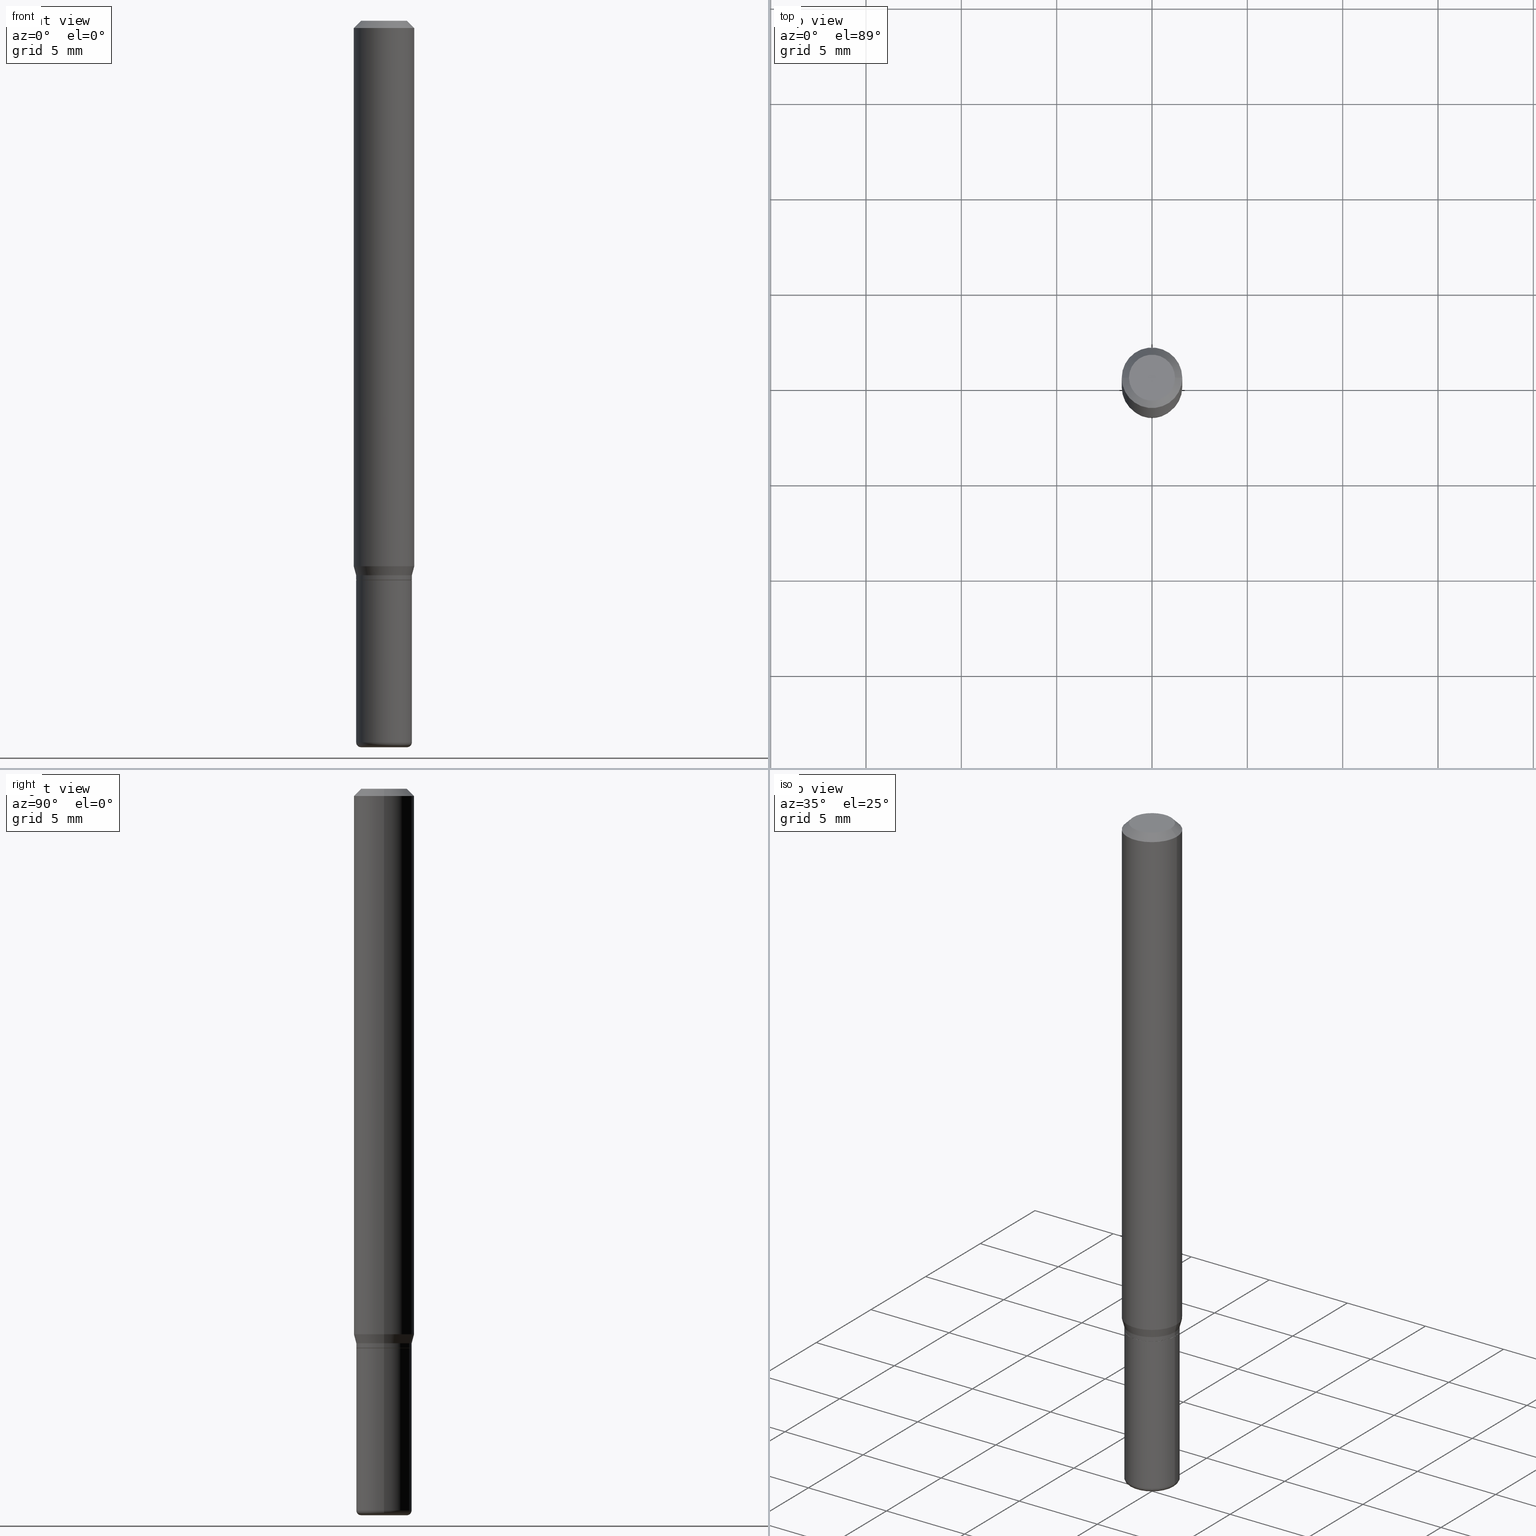
[diagram: canonical four-view strip — front | top / right | iso, engineering-drawing reading convention]
A machine part, canonical four-view strip (front | top / right | iso — engineering-drawing reading convention). The complete STEP part file that produces these views, byte-faithful:
ISO-10303-21;
HEADER;
FILE_DESCRIPTION (( 'STEP AP203' ),
    '1' );
FILE_NAME ('08624.STEP',
    '2024-02-29T20:02:40',
    ( '' ),
    ( '' ),
    'SwSTEP 2.0',
    'SolidWorks 2023',
    '' );
FILE_SCHEMA (( 'CONFIG_CONTROL_DESIGN' ));
ENDSEC;

DATA;
#1 = DIRECTION ( 'NONE',  ( -6.982962677686266711E-15, -1.000000000000000000, 3.491481338843145583E-15 ) ) ;
#2 = CARTESIAN_POINT ( 'NONE',  ( 2.754428713916942619E-29, -3.932594204224195830E-15, -1.126339745962155581 ) ) ;
#3 = VERTEX_POINT ( 'NONE', #470 ) ;
#4 = DIRECTION ( 'NONE',  ( -2.445468806185136597E-29, 3.491481338843145583E-15, 1.000000000000000000 ) ) ;
#5 = CARTESIAN_POINT ( 'NONE',  ( 2.754428713916942619E-29, -3.932594204224195830E-15, -1.126339745962155581 ) ) ;
#6 = ORIENTED_EDGE ( 'NONE', *, *, #338, .T. ) ;
#7 = DIRECTION ( 'NONE',  ( -2.445468806185136877E-29, 3.491481338843145188E-15, 1.000000000000000000 ) ) ;
#8 = DIRECTION ( 'NONE',  ( 1.000000000000000000, -6.982962677686273810E-15, 0.000000000000000000 ) ) ;
#9 = APPROVAL ( #220, 'UNSPECIFIED' ) ;
#10 = AXIS2_PLACEMENT_3D ( 'NONE', #233, #103, #422 ) ;
#11 = AXIS2_PLACEMENT_3D ( 'NONE', #14, #162, #411 ) ;
#12 = DIRECTION ( 'NONE',  ( -2.445468806185136597E-29, 3.491481338843145583E-15, 1.000000000000000000 ) ) ;
#13 = ADVANCED_FACE ( 'NONE', ( #74 ), #211, .T. ) ;
#14 = CARTESIAN_POINT ( 'NONE',  ( 3.668203209277632395E-31, -5.237222008264614861E-17, -0.01499999999999970281 ) ) ;
#15 = APPROVAL_DATE_TIME ( #95, #501 ) ;
#16 = VECTOR ( 'NONE', #123, 39.37007874015748143 ) ;
#17 = MANIFOLD_SOLID_BREP ( 'Body-Move/Copy2[2]', #236 ) ;
#18 = CALENDAR_DATE ( 2024, 29, 2 ) ;
#19 = ORIENTED_EDGE ( 'NONE', *, *, #238, .F. ) ;
#20 = ORIENTED_EDGE ( 'NONE', *, *, #121, .T. ) ;
#21 = AXIS2_PLACEMENT_3D ( 'NONE', #362, #514, #115 ) ;
#22 = DIRECTION ( 'NONE',  ( -2.445468806185136597E-29, 3.491481338843145583E-15, 1.000000000000000000 ) ) ;
#23 = EDGE_CURVE ( 'NONE', #112, #77, #219, .T. ) ;
#24 = AXIS2_PLACEMENT_3D ( 'NONE', #72, #156, #477 ) ;
#25 = PERSON_AND_ORGANIZATION ( #185, #111 ) ;
#26 = EDGE_CURVE ( 'NONE', #3, #186, #452, .T. ) ;
#27 = ORIENTED_EDGE ( 'NONE', *, *, #26, .T. ) ;
#28 = VERTEX_POINT ( 'NONE', #395 ) ;
#29 = VECTOR ( 'NONE', #129, 39.37007874015748143 ) ;
#30 = AXIS2_PLACEMENT_3D ( 'NONE', #296, #12, #374 ) ;
#31 = CARTESIAN_POINT ( 'NONE',  ( 0.06250000000000000000, -4.811533449433669144E-16, -0.01499999999999970281 ) ) ;
#32 = ORIENTED_EDGE ( 'NONE', *, *, #134, .T. ) ;
#33 = DIRECTION ( 'NONE',  ( 1.000000000000000000, -6.982962677686263555E-15, 0.000000000000000000 ) ) ;
#34 = CIRCLE ( 'NONE', #42, 0.04750000000000000749 ) ;
#35 = APPROVAL_PERSON_ORGANIZATION ( #461, #350, #380 ) ;
#36 = DIRECTION ( 'NONE',  ( -2.445468806185136597E-29, 3.491481338843145583E-15, 1.000000000000000000 ) ) ;
#37 = PRODUCT ( '08624', '08624', '', ( #311 ) ) ;
#38 = ORIENTED_EDGE ( 'NONE', *, *, #361, .T. ) ;
#39 = PLANE ( 'NONE',  #279 ) ;
#40 = DIRECTION ( 'NONE',  ( -2.445468806185136597E-29, 3.491481338843145583E-15, 1.000000000000000000 ) ) ;
#41 =( CONVERSION_BASED_UNIT ( 'INCH', #248 ) LENGTH_UNIT ( ) NAMED_UNIT ( #442 ) );
#42 = AXIS2_PLACEMENT_3D ( 'NONE', #388, #161, #247 ) ;
#43 = LOCAL_TIME ( 15, 2, 40.00000000000000000, #505 ) ;
#44 = EDGE_CURVE ( 'NONE', #344, #70, #289, .T. ) ;
#45 = CARTESIAN_POINT ( 'NONE',  ( 0.000000000000000000, 0.000000000000000000, 0.000000000000000000 ) ) ;
#46 = ADVANCED_FACE ( 'NONE', ( #434 ), #107, .T. ) ;
#47 = ORIENTED_EDGE ( 'NONE', *, *, #238, .T. ) ;
#48 = EDGE_LOOP ( 'NONE', ( #342, #204, #419, #51 ) ) ;
#49 = ADVANCED_FACE ( 'NONE', ( #194 ), #212, .T. ) ;
#50 = SECURITY_CLASSIFICATION_LEVEL ( 'unclassified' ) ;
#51 = ORIENTED_EDGE ( 'NONE', *, *, #253, .T. ) ;
#52 = AXIS2_PLACEMENT_3D ( 'NONE', #484, #132, #291 ) ;
#53 = VECTOR ( 'NONE', #450, 39.37007874015748143 ) ;
#54 = PERSON_AND_ORGANIZATION ( #185, #111 ) ;
#55 = ORIENTED_EDGE ( 'NONE', *, *, #205, .T. ) ;
#56 = ORIENTED_EDGE ( 'NONE', *, *, #105, .F. ) ;
#57 = PERSON_AND_ORGANIZATION_ROLE ( 'creator' ) ;
#58 = EDGE_CURVE ( 'NONE', #124, #359, #276, .T. ) ;
#59 = DIRECTION ( 'NONE',  ( -2.445468806185136597E-29, 3.491481338843145583E-15, 1.000000000000000000 ) ) ;
#60 = CARTESIAN_POINT ( 'NONE',  ( 2.823293736740741066E-29, -4.030915205694411879E-15, -1.154500000000000304 ) ) ;
#61 = DIRECTION ( 'NONE',  ( -2.438088387897960049E-29, 3.491481338843145188E-15, 1.000000000000000000 ) ) ;
#62 = DIRECTION ( 'NONE',  ( 1.000000000000000000, -6.982962677686266711E-15, 4.876176775795935793E-29 ) ) ;
#63 = DATE_AND_TIME ( #261, #43 ) ;
#64 = DIRECTION ( 'NONE',  ( 1.000000000000000000, -6.982962677686259611E-15, 0.000000000000000000 ) ) ;
#65 = AXIS2_PLACEMENT_3D ( 'NONE', #320, #366, #83 ) ;
#66 = UNCERTAINTY_MEASURE_WITH_UNIT (LENGTH_MEASURE( 1.000000000000000082E-05 ), #41, 'distance_accuracy_value', 'NONE');
#67 = CYLINDRICAL_SURFACE ( 'NONE', #137, 0.06250000000000000000 ) ;
#68 = CC_DESIGN_APPROVAL ( #501, ( #80 ) ) ;
#69 = DIRECTION ( 'NONE',  ( -2.445468806185136597E-29, 3.491481338843145583E-15, 1.000000000000000000 ) ) ;
#70 = VERTEX_POINT ( 'NONE', #436 ) ;
#71 = CC_DESIGN_PERSON_AND_ORGANIZATION_ASSIGNMENT ( #463, #384, ( #278 ) ) ;
#72 = CARTESIAN_POINT ( 'NONE',  ( 3.643748521215853910E-29, -5.202307194876288105E-15, -1.490000000000000213 ) ) ;
#73 = DIRECTION ( 'NONE',  ( 1.000000000000000000, -6.982962677686266711E-15, 0.000000000000000000 ) ) ;
#74 = FACE_OUTER_BOUND ( 'NONE', #237, .T. ) ;
#75 = ADVANCED_FACE ( 'NONE', ( #155 ), #369, .F. ) ;
#76 = LINE ( 'NONE', #282, #99 ) ;
#77 = VERTEX_POINT ( 'NONE', #198 ) ;
#78 = AXIS2_PLACEMENT_3D ( 'NONE', #60, #426, #64 ) ;
#79 = LOCAL_TIME ( 15, 2, 40.00000000000000000, #182 ) ;
#80 = PRODUCT_DEFINITION ( 'UNKNOWN', '', #272, #109 ) ;
#81 = CARTESIAN_POINT ( 'NONE',  ( 2.823293736740741066E-29, -4.030915205694411879E-15, -1.154500000000000304 ) ) ;
#82 = ORIENTED_EDGE ( 'NONE', *, *, #410, .F. ) ;
#83 = DIRECTION ( 'NONE',  ( -1.000000000000000000, 6.982962677686266711E-15, 0.000000000000000000 ) ) ;
#84 = FACE_OUTER_BOUND ( 'NONE', #510, .T. ) ;
#85 = CARTESIAN_POINT ( 'NONE',  ( 3.668203209277632395E-31, -5.237222008264614861E-17, -0.01499999999999970281 ) ) ;
#86 = EDGE_CURVE ( 'NONE', #186, #3, #321, .T. ) ;
#87 = ORIENTED_EDGE ( 'NONE', *, *, #44, .F. ) ;
#88 = DIRECTION ( 'NONE',  ( -2.445468806185136877E-29, 3.491481338843145188E-15, 1.000000000000000000 ) ) ;
#89 = DIRECTION ( 'NONE',  ( 2.438088387897960049E-29, -3.491481338843145188E-15, -1.000000000000000000 ) ) ;
#90 = CARTESIAN_POINT ( 'NONE',  ( -0.06250000000000000000, 4.440892098500626162E-16, -3.074334431409316114E-30 ) ) ;
#91 = AXIS2_PLACEMENT_3D ( 'NONE', #357, #517, #235 ) ;
#92 = DIRECTION ( 'NONE',  ( -2.445468806185136597E-29, 3.491481338843145583E-15, 1.000000000000000000 ) ) ;
#93 = CIRCLE ( 'NONE', #159, 0.04750000000000000749 ) ;
#94 = CARTESIAN_POINT ( 'NONE',  ( -0.05749999999999994699, -4.208921997558003169E-15, -1.490000000000000213 ) ) ;
#95 = DATE_AND_TIME ( #173, #354 ) ;
#96 = VERTEX_POINT ( 'NONE', #288 ) ;
#97 = APPLICATION_PROTOCOL_DEFINITION ( 'international standard', 'config_control_design', 1994, #256 ) ;
#98 = ORIENTED_EDGE ( 'NONE', *, *, #487, .F. ) ;
#99 = VECTOR ( 'NONE', #208, 39.37007874015748143 ) ;
#100 = AXIS2_PLACEMENT_3D ( 'NONE', #375, #1, #254 ) ;
#101 = DIRECTION ( 'NONE',  ( -1.000000000000000000, 6.982962677686265922E-15, -4.876176775795935793E-29 ) ) ;
#102 = COORDINATED_UNIVERSAL_TIME_OFFSET ( 5, 0, .BEHIND. ) ;
#103 = DIRECTION ( 'NONE',  ( -2.445468806185136597E-29, 3.491481338843145583E-15, 1.000000000000000000 ) ) ;
#104 = LINE ( 'NONE', #507, #427 ) ;
#105 = EDGE_CURVE ( 'NONE', #359, #127, #167, .T. ) ;
#106 = DIRECTION ( 'NONE',  ( 0.000000000000000000, 0.000000000000000000, 1.000000000000000000 ) ) ;
#107 = CONICAL_SURFACE ( 'NONE', #502, 0.05749999999999994699, 0.2617993877991489637 ) ;
#108 = DIRECTION ( 'NONE',  ( 1.000000000000000000, -6.982962677686263555E-15, 0.000000000000000000 ) ) ;
#109 = DESIGN_CONTEXT ( 'detailed design', #286, 'design' ) ;
#110 = DIRECTION ( 'NONE',  ( 1.000000000000000000, -6.982962677686272233E-15, 0.000000000000000000 ) ) ;
#111 = ORGANIZATION ( 'UNSPECIFIED', 'UNSPECIFIED', '' ) ;
#112 = VERTEX_POINT ( 'NONE', #119 ) ;
#113 = EDGE_CURVE ( 'NONE', #77, #186, #478, .T. ) ;
#114 = EDGE_LOOP ( 'NONE', ( #20, #183 ) ) ;
#115 = DIRECTION ( 'NONE',  ( 1.000000000000000000, -6.982962677686272233E-15, 0.000000000000000000 ) ) ;
#116 = FACE_OUTER_BOUND ( 'NONE', #325, .T. ) ;
#117 = ADVANCED_FACE ( 'NONE', ( #482 ), #260, .T. ) ;
#118 = ORIENTED_EDGE ( 'NONE', *, *, #498, .T. ) ;
#119 = CARTESIAN_POINT ( 'NONE',  ( 0.05699999999999997430, -4.430689818991950396E-15, -1.155000000000000027 ) ) ;
#120 = ORIENTED_EDGE ( 'NONE', *, *, #58, .T. ) ;
#121 = EDGE_CURVE ( 'NONE', #197, #250, #269, .T. ) ;
#122 = CARTESIAN_POINT ( 'NONE',  ( 0.05749999999999994699, -4.399266486942362543E-15, -1.145000000000000240 ) ) ;
#123 = DIRECTION ( 'NONE',  ( -0.7071067811865479058, 2.468850131082261005E-15, -0.7071067811865471286 ) ) ;
#124 = VERTEX_POINT ( 'NONE', #511 ) ;
#125 = DIRECTION ( 'NONE',  ( -2.445468806185136597E-29, 3.491481338843145583E-15, 1.000000000000000000 ) ) ;
#126 = LINE ( 'NONE', #157, #29 ) ;
#127 = VERTEX_POINT ( 'NONE', #440 ) ;
#128 = DIRECTION ( 'NONE',  ( 1.000000000000000000, -6.982962677686262766E-15, 4.883557194083111780E-29 ) ) ;
#129 = DIRECTION ( 'NONE',  ( -2.445468806185136877E-29, 3.491481338843145188E-15, 1.000000000000000000 ) ) ;
#130 = ORIENTED_EDGE ( 'NONE', *, *, #302, .T. ) ;
#131 = VECTOR ( 'NONE', #280, 39.37007874015748143 ) ;
#132 = DIRECTION ( 'NONE',  ( -2.445468806185136597E-29, 3.491481338843145583E-15, 1.000000000000000000 ) ) ;
#133 = DIRECTION ( 'NONE',  ( 1.000000000000000000, -6.982962677686266711E-15, 4.852736867747365086E-29 ) ) ;
#134 = EDGE_CURVE ( 'NONE', #127, #438, #126, .T. ) ;
#135 = FACE_OUTER_BOUND ( 'NONE', #148, .T. ) ;
#136 = PRODUCT_RELATED_PRODUCT_CATEGORY ( 'detail', '', ( #37 ) ) ;
#137 = AXIS2_PLACEMENT_3D ( 'NONE', #266, #424, #62 ) ;
#138 = EDGE_CURVE ( 'NONE', #290, #412, #283, .T. ) ;
#139 =( LENGTH_UNIT ( ) NAMED_UNIT ( * ) SI_UNIT ( $, .METRE. ) );
#140 = VECTOR ( 'NONE', #147, 39.37007874015748143 ) ;
#141 = ORIENTED_EDGE ( 'NONE', *, *, #178, .F. ) ;
#142 = EDGE_LOOP ( 'NONE', ( #258, #306, #479, #87 ) ) ;
#143 = EDGE_CURVE ( 'NONE', #127, #359, #383, .T. ) ;
#144 = CARTESIAN_POINT ( 'NONE',  ( 0.000000000000000000, 0.000000000000000000, 0.000000000000000000 ) ) ;
#145 = DIRECTION ( 'NONE',  ( -2.445468806185136597E-29, 3.491481338843145583E-15, 1.000000000000000000 ) ) ;
#146 = EDGE_CURVE ( 'NONE', #150, #344, #509, .T. ) ;
#147 = DIRECTION ( 'NONE',  ( -2.445468806185136877E-29, 3.491481338843145188E-15, 1.000000000000000000 ) ) ;
#148 = EDGE_LOOP ( 'NONE', ( #508, #188, #356, #393 ) ) ;
#149 = FACE_OUTER_BOUND ( 'NONE', #491, .T. ) ;
#150 = VERTEX_POINT ( 'NONE', #166 ) ;
#151 = PRODUCT_DEFINITION_SHAPE ( 'NONE', 'NONE',  #80 ) ;
#152 = ORIENTED_EDGE ( 'NONE', *, *, #232, .T. ) ;
#153 = ORIENTED_EDGE ( 'NONE', *, *, #26, .F. ) ;
#154 = CARTESIAN_POINT ( 'NONE',  ( 0.000000000000000000, 0.000000000000000000, 0.000000000000000000 ) ) ;
#155 = FACE_OUTER_BOUND ( 'NONE', #114, .T. ) ;
#156 = DIRECTION ( 'NONE',  ( -2.445468806185136597E-29, 3.491481338843145583E-15, 1.000000000000000000 ) ) ;
#157 = CARTESIAN_POINT ( 'NONE',  ( 0.06250000000000000000, -4.364351673553916694E-16, 3.047610484872459871E-30 ) ) ;
#158 = AXIS2_PLACEMENT_3D ( 'NONE', #273, #145, #110 ) ;
#159 = AXIS2_PLACEMENT_3D ( 'NONE', #165, #245, #133 ) ;
#160 = CARTESIAN_POINT ( 'NONE',  ( -0.05699999999999997430, -3.627651586980576706E-15, -1.155000000000000027 ) ) ;
#161 = DIRECTION ( 'NONE',  ( -2.445468806185136597E-29, 3.491481338843145583E-15, 1.000000000000000000 ) ) ;
#162 = DIRECTION ( 'NONE',  ( 2.445468806185136597E-29, -3.491481338843145583E-15, -1.000000000000000000 ) ) ;
#163 = DIRECTION ( 'NONE',  ( 1.000000000000000000, -6.982962677686272233E-15, 0.000000000000000000 ) ) ;
#164 = EDGE_LOOP ( 'NONE', ( #263, #38 ) ) ;
#165 = CARTESIAN_POINT ( 'NONE',  ( -6.680649051745406845E-45, 9.538196290434862081E-31, 2.731847993664263218E-16 ) ) ;
#166 = CARTESIAN_POINT ( 'NONE',  ( -0.04750000000000000749, -4.846729665296451395E-15, -1.500000000000000222 ) ) ;
#167 = CIRCLE ( 'NONE', #390, 0.06250000000000000000 ) ;
#168 = LINE ( 'NONE', #328, #486 ) ;
#169 = EDGE_CURVE ( 'NONE', #96, #438, #472, .T. ) ;
#170 = CARTESIAN_POINT ( 'NONE',  ( -0.06250000000000000000, -3.488504994374132819E-15, -1.126339745962155581 ) ) ;
#171 = MANIFOLD_SOLID_BREP ( 'Body-Move/Copy2[1]', #515 ) ;
#172 = AXIS2_PLACEMENT_3D ( 'NONE', #506, #69, #341 ) ;
#173 = CALENDAR_DATE ( 2024, 29, 2 ) ;
#174 = LOCAL_TIME ( 15, 2, 40.00000000000000000, #377 ) ;
#175 = DATE_AND_TIME ( #18, #174 ) ;
#176 = ORIENTED_EDGE ( 'NONE', *, *, #323, .T. ) ;
#177 = PERSON_AND_ORGANIZATION_ROLE ( 'design_owner' ) ;
#178 = EDGE_CURVE ( 'NONE', #250, #197, #435, .T. ) ;
#179 = APPROVAL_ROLE ( '' ) ;
#180 = AXIS2_PLACEMENT_3D ( 'NONE', #408, #492, #400 ) ;
#181 = DIRECTION ( 'NONE',  ( 1.000000000000000000, -6.982962677686268288E-15, 0.000000000000000000 ) ) ;
#182 = COORDINATED_UNIVERSAL_TIME_OFFSET ( 5, 0, .BEHIND. ) ;
#183 = ORIENTED_EDGE ( 'NONE', *, *, #178, .T. ) ;
#184 = EDGE_CURVE ( 'NONE', #28, #150, #468, .T. ) ;
#185 = PERSON ( 'UNSPECIFIED', 'UNSPECIFIED', 'UNSPECIFIED', ('UNSPECIFIED'), ('UNSPECIFIED'), ('UNSPECIFIED') ) ;
#186 = VERTEX_POINT ( 'NONE', #229 ) ;
#187 = CARTESIAN_POINT ( 'NONE',  ( 3.316907271900976589E-16, 0.04750000000000000749, -2.925296391183627249E-17 ) ) ;
#188 = ORIENTED_EDGE ( 'NONE', *, *, #146, .T. ) ;
#189 = CIRCLE ( 'NONE', #158, 0.05749999999999994699 ) ;
#190 = PLANE ( 'NONE',  #459 ) ;
#191 = CC_DESIGN_APPROVAL ( #350, ( #272 ) ) ;
#192 = DIRECTION ( 'NONE',  ( 0.7071067811865479058, -7.319954787623257623E-15, -0.7071067811865471286 ) ) ;
#193 = EDGE_LOOP ( 'NONE', ( #55, #120, #406, #367 ) ) ;
#194 = FACE_OUTER_BOUND ( 'NONE', #378, .T. ) ;
#195 = DIRECTION ( 'NONE',  ( 1.000000000000000000, -6.982962677686266711E-15, 0.000000000000000000 ) ) ;
#196 = ADVANCED_FACE ( 'NONE', ( #234 ), #190, .F. ) ;
#197 = VERTEX_POINT ( 'NONE', #307 ) ;
#198 = CARTESIAN_POINT ( 'NONE',  ( -0.05699999999999997430, -3.625002359806465505E-15, -1.155000000000000027 ) ) ;
#199 = AXIS2_PLACEMENT_3D ( 'NONE', #310, #430, #73 ) ;
#200 = ORIENTED_EDGE ( 'NONE', *, *, #113, .T. ) ;
#201 = CIRCLE ( 'NONE', #100, 0.009999999999999944697 ) ;
#202 = DIRECTION ( 'NONE',  ( -2.438088387897960049E-29, 3.491481338843145188E-15, 1.000000000000000000 ) ) ;
#203 = CARTESIAN_POINT ( 'NONE',  ( 2.800061783081981762E-29, -3.997746132975402522E-15, -1.145000000000000240 ) ) ;
#204 = ORIENTED_EDGE ( 'NONE', *, *, #489, .F. ) ;
#205 = EDGE_CURVE ( 'NONE', #402, #124, #189, .T. ) ;
#206 = FACE_OUTER_BOUND ( 'NONE', #271, .T. ) ;
#207 = DIRECTION ( 'NONE',  ( 1.000000000000000000, -6.982962677686270655E-15, 0.000000000000000000 ) ) ;
#208 = DIRECTION ( 'NONE',  ( -2.445468806185136877E-29, 3.491481338843145188E-15, 1.000000000000000000 ) ) ;
#209 = DIRECTION ( 'NONE',  ( 1.000000000000000000, -6.982962677686267499E-15, 4.876176775795936353E-29 ) ) ;
#210 = CARTESIAN_POINT ( 'NONE',  ( 2.824516471143833307E-29, -4.032660946363833383E-15, -1.155000000000000027 ) ) ;
#211 = CONICAL_SURFACE ( 'NONE', #227, 0.05699999999999997430, 0.7853981633975507526 ) ;
#212 = CONICAL_SURFACE ( 'NONE', #65, 0.06250000000000000000, 0.7853981633974488341 ) ;
#213 = LOCAL_TIME ( 15, 2, 40.00000000000000000, #102 ) ;
#214 = FACE_OUTER_BOUND ( 'NONE', #48, .T. ) ;
#215 = EDGE_CURVE ( 'NONE', #186, #124, #104, .T. ) ;
#216 = ORIENTED_EDGE ( 'NONE', *, *, #113, .F. ) ;
#217 = APPROVAL_ROLE ( '' ) ;
#218 = ORIENTED_EDGE ( 'NONE', *, *, #143, .T. ) ;
#219 = CIRCLE ( 'NONE', #10, 0.05699999999999997430 ) ;
#220 = APPROVAL_STATUS ( 'not_yet_approved' ) ;
#221 = CALENDAR_DATE ( 2024, 29, 2 ) ;
#222 = CC_DESIGN_DATE_AND_TIME_ASSIGNMENT ( #495, #425, ( #80 ) ) ;
#223 = DIRECTION ( 'NONE',  ( 1.000000000000000000, -6.982962677686266711E-15, 4.876176775795935793E-29 ) ) ;
#224 = DIRECTION ( 'NONE',  ( 1.000000000000000000, -6.982962677686265922E-15, 4.876176775795935793E-29 ) ) ;
#225 = CARTESIAN_POINT ( 'NONE',  ( 2.824516471143833307E-29, -4.032660946363833383E-15, -1.155000000000000027 ) ) ;
#226 = DATE_TIME_ROLE ( 'classification_date' ) ;
#227 = AXIS2_PLACEMENT_3D ( 'NONE', #462, #385, #309 ) ;
#228 = AXIS2_PLACEMENT_3D ( 'NONE', #432, #231, #421 ) ;
#229 = CARTESIAN_POINT ( 'NONE',  ( -0.05749999999999997474, -3.622353132632355093E-15, -1.154500000000000304 ) ) ;
#230 = ADVANCED_FACE ( 'NONE', ( #345 ), #67, .T. ) ;
#231 = DIRECTION ( 'NONE',  ( -2.445468806185136597E-29, 3.491481338843145583E-15, 1.000000000000000000 ) ) ;
#232 = EDGE_CURVE ( 'NONE', #77, #112, #363, .T. ) ;
#233 = CARTESIAN_POINT ( 'NONE',  ( 2.824516471143833307E-29, -4.032660946363833383E-15, -1.155000000000000027 ) ) ;
#234 = FACE_OUTER_BOUND ( 'NONE', #164, .T. ) ;
#235 = DIRECTION ( 'NONE',  ( 1.000000000000000000, -6.982962677686273810E-15, 0.000000000000000000 ) ) ;
#236 = CLOSED_SHELL ( 'NONE', ( #300, #13, #49, #230, #117, #46, #267, #475, #196, #348, #284, #294 ) ) ;
#237 = EDGE_LOOP ( 'NONE', ( #405, #200, #153, #82 ) ) ;
#238 = EDGE_CURVE ( 'NONE', #438, #412, #329, .T. ) ;
#239 = DIRECTION ( 'NONE',  ( -2.445468806185136597E-29, 3.491481338843145583E-15, 1.000000000000000000 ) ) ;
#240 = ORIENTED_EDGE ( 'NONE', *, *, #23, .F. ) ;
#241 = CARTESIAN_POINT ( 'NONE',  ( -0.05749999999999994699, -3.589184059913344947E-15, -1.145000000000000240 ) ) ;
#242 = DIRECTION ( 'NONE',  ( -2.445468806185136597E-29, 3.491481338843145583E-15, 1.000000000000000000 ) ) ;
#243 = EDGE_CURVE ( 'NONE', #150, #28, #34, .T. ) ;
#244 = ORIENTED_EDGE ( 'NONE', *, *, #86, .T. ) ;
#245 = DIRECTION ( 'NONE',  ( -2.445468806185136597E-29, 3.491481338843145583E-15, 1.000000000000000000 ) ) ;
#246 = CARTESIAN_POINT ( 'NONE',  ( 3.643748521215853910E-29, -5.202307194876288105E-15, -1.490000000000000213 ) ) ;
#247 = DIRECTION ( 'NONE',  ( 1.000000000000000000, -6.982962677686260400E-15, 0.000000000000000000 ) ) ;
#248 = LENGTH_MEASURE_WITH_UNIT ( LENGTH_MEASURE( 0.02539999999999999897 ), #139 );
#249 = ORIENTED_EDGE ( 'NONE', *, *, #243, .F. ) ;
#250 = VERTEX_POINT ( 'NONE', #443 ) ;
#251 = VECTOR ( 'NONE', #318, 39.37007874015748143 ) ;
#252 = CYLINDRICAL_SURFACE ( 'NONE', #460, 0.05749999999999997474 ) ;
#253 = EDGE_CURVE ( 'NONE', #412, #438, #485, .T. ) ;
#254 = DIRECTION ( 'NONE',  ( 1.000000000000000000, -6.982962677686274599E-15, 0.000000000000000000 ) ) ;
#255 = CC_DESIGN_DATE_AND_TIME_ASSIGNMENT ( #63, #226, ( #278 ) ) ;
#256 = APPLICATION_CONTEXT ( 'configuration controlled 3d designs of mechanical parts and assemblies' ) ;
#257 = PERSON_AND_ORGANIZATION_ROLE ( 'creator' ) ;
#258 = ORIENTED_EDGE ( 'NONE', *, *, #146, .F. ) ;
#259 = EDGE_CURVE ( 'NONE', #3, #402, #76, .T. ) ;
#260 = CONICAL_SURFACE ( 'NONE', #21, 0.05749999999999994699, 0.2617993877991489637 ) ;
#261 = CALENDAR_DATE ( 2024, 29, 2 ) ;
#262 = CIRCLE ( 'NONE', #180, 0.05749999999999994699 ) ;
#263 = ORIENTED_EDGE ( 'NONE', *, *, #489, .T. ) ;
#264 = DIRECTION ( 'NONE',  ( -2.445468806185136877E-29, 3.491481338843145188E-15, 1.000000000000000000 ) ) ;
#265 = PLANE ( 'NONE',  #373 ) ;
#266 = CARTESIAN_POINT ( 'NONE',  ( 0.000000000000000000, 0.000000000000000000, 0.000000000000000000 ) ) ;
#267 = ADVANCED_FACE ( 'NONE', ( #84 ), #370, .T. ) ;
#268 = COORDINATED_UNIVERSAL_TIME_OFFSET ( 5, 0, .BEHIND. ) ;
#269 = CIRCLE ( 'NONE', #91, 0.05750000000000000250 ) ;
#270 = FACE_OUTER_BOUND ( 'NONE', #396, .T. ) ;
#271 = EDGE_LOOP ( 'NONE', ( #176, #415, #496, #456 ) ) ;
#272 = PRODUCT_DEFINITION_FORMATION_WITH_SPECIFIED_SOURCE ( 'ANY', '', #37, .NOT_KNOWN. ) ;
#273 = CARTESIAN_POINT ( 'NONE',  ( 2.800061783081981762E-29, -3.997746132975402522E-15, -1.145000000000000240 ) ) ;
#274 = ORIENTED_EDGE ( 'NONE', *, *, #232, .F. ) ;
#275 = ORIENTED_EDGE ( 'NONE', *, *, #259, .T. ) ;
#276 = LINE ( 'NONE', #241, #251 ) ;
#277 = VECTOR ( 'NONE', #192, 39.37007874015748143 ) ;
#278 = SECURITY_CLASSIFICATION ( '', '', #50 ) ;
#279 = AXIS2_PLACEMENT_3D ( 'NONE', #483, #202, #451 ) ;
#280 = DIRECTION ( 'NONE',  ( 0.2588190451025202954, 1.565188264969630251E-15, 0.9659258262890684232 ) ) ;
#281 = DIRECTION ( 'NONE',  ( -2.445468806185136597E-29, 3.491481338843145583E-15, 1.000000000000000000 ) ) ;
#282 = CARTESIAN_POINT ( 'NONE',  ( 0.05749999999999996780, -4.015203539669601189E-16, 2.803801646082661539E-30 ) ) ;
#283 = LINE ( 'NONE', #401, #16 ) ;
#284 = ADVANCED_FACE ( 'NONE', ( #116 ), #397, .T. ) ;
#285 = ORIENTED_EDGE ( 'NONE', *, *, #259, .F. ) ;
#286 = APPLICATION_CONTEXT ( 'configuration controlled 3d designs of mechanical parts and assemblies' ) ;
#287 = LINE ( 'NONE', #330, #53 ) ;
#288 = CARTESIAN_POINT ( 'NONE',  ( 0.04750000000000000749, -4.035134999187568762E-16, 2.731847993664288856E-16 ) ) ;
#289 = CIRCLE ( 'NONE', #303, 0.05749999999999994699 ) ;
#290 = VERTEX_POINT ( 'NONE', #466 ) ;
#291 = DIRECTION ( 'NONE',  ( 1.000000000000000000, -6.982962677686260400E-15, 0.000000000000000000 ) ) ;
#292 = CC_DESIGN_PERSON_AND_ORGANIZATION_ASSIGNMENT ( #457, #257, ( #272 ) ) ;
#293 =( NAMED_UNIT ( * ) PLANE_ANGLE_UNIT ( ) SI_UNIT ( $, .RADIAN. ) );
#294 = ADVANCED_FACE ( 'NONE', ( #270 ), #497, .T. ) ;
#295 = FACE_OUTER_BOUND ( 'NONE', #444, .T. ) ;
#296 = CARTESIAN_POINT ( 'NONE',  ( -6.680649051745406845E-45, 9.538196290434862081E-31, 2.731847993664263218E-16 ) ) ;
#297 = ADVANCED_BREP_SHAPE_REPRESENTATION ( '08624', ( #171, #17, #305 ), #476 ) ;
#298 = ORIENTED_EDGE ( 'NONE', *, *, #253, .F. ) ;
#299 = EDGE_LOOP ( 'NONE', ( #98, #389, #130, #141 ) ) ;
#300 = ADVANCED_FACE ( 'NONE', ( #149 ), #458, .T. ) ;
#301 = APPROVAL_STATUS ( 'not_yet_approved' ) ;
#302 = EDGE_CURVE ( 'NONE', #70, #197, #386, .T. ) ;
#303 = AXIS2_PLACEMENT_3D ( 'NONE', #246, #36, #33 ) ;
#304 = APPLICATION_PROTOCOL_DEFINITION ( 'international standard', 'config_control_design', 1994, #286 ) ;
#305 = AXIS2_PLACEMENT_3D ( 'NONE', #144, #106, #349 ) ;
#306 = ORIENTED_EDGE ( 'NONE', *, *, #243, .T. ) ;
#307 = CARTESIAN_POINT ( 'NONE',  ( 0.05750000000000000250, -4.434181300330794192E-15, -1.155000000000000027 ) ) ;
#308 = PERSON_AND_ORGANIZATION ( #185, #111 ) ;
#309 = DIRECTION ( 'NONE',  ( 1.000000000000000000, -6.982962677686268288E-15, 0.000000000000000000 ) ) ;
#310 = CARTESIAN_POINT ( 'NONE',  ( 3.668203209277632395E-31, -5.237222008264614861E-17, -0.01499999999999970281 ) ) ;
#311 = MECHANICAL_CONTEXT ( 'NONE', #256, 'mechanical' ) ;
#312 = FACE_OUTER_BOUND ( 'NONE', #464, .T. ) ;
#313 = ORIENTED_EDGE ( 'NONE', *, *, #498, .F. ) ;
#314 = AXIS2_PLACEMENT_3D ( 'NONE', #324, #480, #441 ) ;
#315 = DIRECTION ( 'NONE',  ( -2.445468806185136597E-29, 3.491481338843145583E-15, 1.000000000000000000 ) ) ;
#316 = ADVANCED_FACE ( 'NONE', ( #312 ), #265, .F. ) ;
#317 = EDGE_LOOP ( 'NONE', ( #218, #471, #19, #387 ) ) ;
#318 = DIRECTION ( 'NONE',  ( -0.2588190451025202954, 5.211531920934543942E-15, 0.9659258262890684232 ) ) ;
#319 = CC_DESIGN_PERSON_AND_ORGANIZATION_ASSIGNMENT ( #54, #57, ( #80 ) ) ;
#320 = CARTESIAN_POINT ( 'NONE',  ( 3.668203209277632395E-31, -5.237222008264614861E-17, -0.01499999999999970281 ) ) ;
#321 = CIRCLE ( 'NONE', #493, 0.05749999999999997474 ) ;
#322 = AXIS2_PLACEMENT_3D ( 'NONE', #500, #59, #223 ) ;
#323 = EDGE_CURVE ( 'NONE', #70, #344, #407, .T. ) ;
#324 = CARTESIAN_POINT ( 'NONE',  ( -0.04750000000000000749, -4.864799395390240612E-15, -1.490000000000000213 ) ) ;
#325 = EDGE_LOOP ( 'NONE', ( #216, #152, #333, #399 ) ) ;
#326 = CARTESIAN_POINT ( 'NONE',  ( 0.05749999999999994699, -4.399266486942362543E-15, -1.145000000000000240 ) ) ;
#327 = DIRECTION ( 'NONE',  ( -2.445468806185136597E-29, 3.491481338843145583E-15, 1.000000000000000000 ) ) ;
#328 = CARTESIAN_POINT ( 'NONE',  ( -0.05749999999999997474, 4.085620730620574274E-16, -2.828387676896569661E-30 ) ) ;
#329 = CIRCLE ( 'NONE', #199, 0.06250000000000000000 ) ;
#330 = CARTESIAN_POINT ( 'NONE',  ( 0.05699999999999997430, -4.430689818991950396E-15, -1.155000000000000027 ) ) ;
#331 = ADVANCED_FACE ( 'NONE', ( #394 ), #516, .T. ) ;
#332 =( NAMED_UNIT ( * ) SI_UNIT ( $, .STERADIAN. ) SOLID_ANGLE_UNIT ( ) );
#333 = ORIENTED_EDGE ( 'NONE', *, *, #410, .T. ) ;
#334 = CARTESIAN_POINT ( 'NONE',  ( -0.06250000000000000000, -1.548394002303358444E-15, -0.01499999999999970281 ) ) ;
#335 = ORIENTED_EDGE ( 'NONE', *, *, #353, .F. ) ;
#336 = AXIS2_PLACEMENT_3D ( 'NONE', #154, #315, #473 ) ;
#337 = AXIS2_PLACEMENT_3D ( 'NONE', #365, #92, #128 ) ;
#338 = EDGE_CURVE ( 'NONE', #402, #127, #429, .T. ) ;
#339 = PERSON_AND_ORGANIZATION ( #185, #111 ) ;
#340 = APPROVAL_DATE_TIME ( #175, #9 ) ;
#341 = DIRECTION ( 'NONE',  ( 1.000000000000000000, -6.982962677686268288E-15, 0.000000000000000000 ) ) ;
#342 = ORIENTED_EDGE ( 'NONE', *, *, #169, .F. ) ;
#343 = DATE_AND_TIME ( #455, #213 ) ;
#344 = VERTEX_POINT ( 'NONE', #94 ) ;
#345 = FACE_OUTER_BOUND ( 'NONE', #317, .T. ) ;
#346 = AXIS2_PLACEMENT_3D ( 'NONE', #85, #242, #195 ) ;
#347 = CC_DESIGN_SECURITY_CLASSIFICATION ( #278, ( #272 ) ) ;
#348 = ADVANCED_FACE ( 'NONE', ( #295 ), #39, .F. ) ;
#349 = DIRECTION ( 'NONE',  ( 1.000000000000000000, 0.000000000000000000, 0.000000000000000000 ) ) ;
#350 = APPROVAL ( #301, 'UNSPECIFIED' ) ;
#351 = ORIENTED_EDGE ( 'NONE', *, *, #215, .T. ) ;
#352 = VECTOR ( 'NONE', #360, 39.37007874015748143 ) ;
#353 = EDGE_CURVE ( 'NONE', #359, #412, #448, .T. ) ;
#354 = LOCAL_TIME ( 15, 2, 40.00000000000000000, #268 ) ;
#355 = DIRECTION ( 'NONE',  ( 2.438088387897960049E-29, -3.491481338843145188E-15, -1.000000000000000000 ) ) ;
#356 = ORIENTED_EDGE ( 'NONE', *, *, #323, .F. ) ;
#357 = CARTESIAN_POINT ( 'NONE',  ( 2.824516471143833307E-29, -4.032660946363833383E-15, -1.155000000000000027 ) ) ;
#358 = CC_DESIGN_PERSON_AND_ORGANIZATION_ASSIGNMENT ( #308, #177, ( #37 ) ) ;
#359 = VERTEX_POINT ( 'NONE', #170 ) ;
#360 = DIRECTION ( 'NONE',  ( -0.7071067811866199593, 7.493145998870616062E-15, 0.7071067811864750752 ) ) ;
#361 = EDGE_CURVE ( 'NONE', #96, #290, #428, .T. ) ;
#362 = CARTESIAN_POINT ( 'NONE',  ( 2.800061783081981762E-29, -3.997746132975402522E-15, -1.145000000000000240 ) ) ;
#363 = CIRCLE ( 'NONE', #416, 0.05699999999999997430 ) ;
#364 = TOROIDAL_SURFACE ( 'NONE', #337, 0.04750000000000000749, 0.009999999999999944697 ) ;
#365 = CARTESIAN_POINT ( 'NONE',  ( 3.643748521215853910E-29, -5.202307194876288105E-15, -1.490000000000000213 ) ) ;
#366 = DIRECTION ( 'NONE',  ( 2.445468806185136597E-29, -3.491481338843145583E-15, -1.000000000000000000 ) ) ;
#367 = ORIENTED_EDGE ( 'NONE', *, *, #338, .F. ) ;
#368 = CYLINDRICAL_SURFACE ( 'NONE', #417, 0.05749999999999997474 ) ;
#369 = PLANE ( 'NONE',  #372 ) ;
#370 = CYLINDRICAL_SURFACE ( 'NONE', #336, 0.06250000000000000000 ) ;
#371 = DIRECTION ( 'NONE',  ( -2.445468806185136597E-29, 3.491481338843145583E-15, 1.000000000000000000 ) ) ;
#372 = AXIS2_PLACEMENT_3D ( 'NONE', #446, #89, #474 ) ;
#373 = AXIS2_PLACEMENT_3D ( 'NONE', #423, #61, #224 ) ;
#374 = DIRECTION ( 'NONE',  ( 1.000000000000000000, -6.982962677686266711E-15, 4.852736867747365086E-29 ) ) ;
#375 = CARTESIAN_POINT ( 'NONE',  ( 0.04750000000000000749, -5.533997922066385616E-15, -1.490000000000000213 ) ) ;
#376 = CARTESIAN_POINT ( 'NONE',  ( 0.05749999999999997474, -4.015203539669602175E-16, 2.803801646082662240E-30 ) ) ;
#377 = COORDINATED_UNIVERSAL_TIME_OFFSET ( 5, 0, .BEHIND. ) ;
#378 = EDGE_LOOP ( 'NONE', ( #418, #449, #47, #379 ) ) ;
#379 = ORIENTED_EDGE ( 'NONE', *, *, #138, .F. ) ;
#380 = APPROVAL_ROLE ( '' ) ;
#381 = SHAPE_DEFINITION_REPRESENTATION ( #151, #297 ) ;
#382 = ORIENTED_EDGE ( 'NONE', *, *, #215, .F. ) ;
#383 = CIRCLE ( 'NONE', #447, 0.06250000000000000000 ) ;
#384 = PERSON_AND_ORGANIZATION_ROLE ( 'classification_officer' ) ;
#385 = DIRECTION ( 'NONE',  ( -2.445468806185136597E-29, 3.491481338843145583E-15, 1.000000000000000000 ) ) ;
#386 = LINE ( 'NONE', #376, #140 ) ;
#387 = ORIENTED_EDGE ( 'NONE', *, *, #134, .F. ) ;
#388 = CARTESIAN_POINT ( 'NONE',  ( 3.668203209277704895E-29, -5.237222008264718177E-15, -1.500000000000000222 ) ) ;
#389 = ORIENTED_EDGE ( 'NONE', *, *, #44, .T. ) ;
#390 = AXIS2_PLACEMENT_3D ( 'NONE', #2, #327, #207 ) ;
#391 = DIRECTION ( 'NONE',  ( 1.000000000000000000, -6.982962677686270655E-15, 0.000000000000000000 ) ) ;
#392 = DIRECTION ( 'NONE',  ( 1.000000000000000000, -6.982962677686259611E-15, 0.000000000000000000 ) ) ;
#393 = ORIENTED_EDGE ( 'NONE', *, *, #433, .F. ) ;
#394 = FACE_OUTER_BOUND ( 'NONE', #142, .T. ) ;
#395 = CARTESIAN_POINT ( 'NONE',  ( 0.04750000000000000749, -5.568912735454815688E-15, -1.500000000000000222 ) ) ;
#396 = EDGE_LOOP ( 'NONE', ( #382, #244, #275, #313 ) ) ;
#397 = CONICAL_SURFACE ( 'NONE', #172, 0.05699999999999997430, 0.7853981633975507526 ) ;
#398 = APPROVAL_PERSON_ORGANIZATION ( #413, #9, #179 ) ;
#399 = ORIENTED_EDGE ( 'NONE', *, *, #86, .F. ) ;
#400 = DIRECTION ( 'NONE',  ( 1.000000000000000000, -6.982962677686272233E-15, 0.000000000000000000 ) ) ;
#401 = CARTESIAN_POINT ( 'NONE',  ( -0.06250000000000000000, 3.840629472727455270E-16, -0.01499999999999970281 ) ) ;
#402 = VERTEX_POINT ( 'NONE', #326 ) ;
#403 = ADVANCED_FACE ( 'NONE', ( #135 ), #364, .T. ) ;
#404 = DIRECTION ( 'NONE',  ( 1.000000000000000000, -6.982962677686267499E-15, 4.876176775795936353E-29 ) ) ;
#405 = ORIENTED_EDGE ( 'NONE', *, *, #23, .T. ) ;
#406 = ORIENTED_EDGE ( 'NONE', *, *, #143, .F. ) ;
#407 = CIRCLE ( 'NONE', #453, 0.05749999999999994699 ) ;
#408 = CARTESIAN_POINT ( 'NONE',  ( 2.800061783081981762E-29, -3.997746132975402522E-15, -1.145000000000000240 ) ) ;
#409 = CC_DESIGN_PERSON_AND_ORGANIZATION_ASSIGNMENT ( #339, #499, ( #272 ) ) ;
#410 = EDGE_CURVE ( 'NONE', #112, #3, #287, .T. ) ;
#411 = DIRECTION ( 'NONE',  ( -1.000000000000000000, 6.982962677686266711E-15, 0.000000000000000000 ) ) ;
#412 = VERTEX_POINT ( 'NONE', #334 ) ;
#413 = PERSON_AND_ORGANIZATION ( #185, #111 ) ;
#414 = ORIENTED_EDGE ( 'NONE', *, *, #58, .F. ) ;
#415 = ORIENTED_EDGE ( 'NONE', *, *, #487, .T. ) ;
#416 = AXIS2_PLACEMENT_3D ( 'NONE', #225, #22, #181 ) ;
#417 = AXIS2_PLACEMENT_3D ( 'NONE', #45, #4, #209 ) ;
#418 = ORIENTED_EDGE ( 'NONE', *, *, #361, .F. ) ;
#419 = ORIENTED_EDGE ( 'NONE', *, *, #138, .T. ) ;
#420 = APPROVAL_DATE_TIME ( #343, #350 ) ;
#421 = DIRECTION ( 'NONE',  ( 1.000000000000000000, -6.982962677686266711E-15, 4.876176775795935793E-29 ) ) ;
#422 = DIRECTION ( 'NONE',  ( 1.000000000000000000, -6.982962677686268288E-15, 0.000000000000000000 ) ) ;
#423 = CARTESIAN_POINT ( 'NONE',  ( 3.582686580359766038E-29, -5.359686688179453325E-15, -1.500000000000000222 ) ) ;
#424 = DIRECTION ( 'NONE',  ( -2.445468806185136597E-29, 3.491481338843145583E-15, 1.000000000000000000 ) ) ;
#425 = DATE_TIME_ROLE ( 'creation_date' ) ;
#426 = DIRECTION ( 'NONE',  ( -2.445468806185136597E-29, 3.491481338843145583E-15, 1.000000000000000000 ) ) ;
#427 = VECTOR ( 'NONE', #264, 39.37007874015748143 ) ;
#428 = CIRCLE ( 'NONE', #30, 0.04750000000000000749 ) ;
#429 = LINE ( 'NONE', #122, #131 ) ;
#430 = DIRECTION ( 'NONE',  ( -2.445468806185136597E-29, 3.491481338843145583E-15, 1.000000000000000000 ) ) ;
#431 = ORIENTED_EDGE ( 'NONE', *, *, #205, .F. ) ;
#432 = CARTESIAN_POINT ( 'NONE',  ( 0.000000000000000000, 0.000000000000000000, 0.000000000000000000 ) ) ;
#433 = EDGE_CURVE ( 'NONE', #28, #70, #201, .T. ) ;
#434 = FACE_OUTER_BOUND ( 'NONE', #518, .T. ) ;
#435 = CIRCLE ( 'NONE', #503, 0.05750000000000000250 ) ;
#436 = CARTESIAN_POINT ( 'NONE',  ( 0.05749999999999994699, -5.603827548843247337E-15, -1.490000000000000213 ) ) ;
#437 = APPROVAL_PERSON_ORGANIZATION ( #25, #501, #217 ) ;
#438 = VERTEX_POINT ( 'NONE', #445 ) ;
#439 = ADVANCED_FACE ( 'NONE', ( #454 ), #252, .T. ) ;
#440 = CARTESIAN_POINT ( 'NONE',  ( 0.06250000000000000000, -4.369029371579586711E-15, -1.126339745962155581 ) ) ;
#441 = DIRECTION ( 'NONE',  ( -1.000000000000000000, 7.105427357600964782E-15, 0.000000000000000000 ) ) ;
#442 = DIMENSIONAL_EXPONENTS ( 1.000000000000000000, 0.000000000000000000, 0.000000000000000000, 0.000000000000000000, 0.000000000000000000, 0.000000000000000000, 0.000000000000000000 ) ;
#443 = CARTESIAN_POINT ( 'NONE',  ( -0.05750000000000000250, -4.208921997558003169E-15, -1.155000000000000027 ) ) ;
#444 = EDGE_LOOP ( 'NONE', ( #240, #274 ) ) ;
#445 = CARTESIAN_POINT ( 'NONE',  ( 0.06250000000000000000, -4.888073874380378612E-16, -0.01499999999999970281 ) ) ;
#446 = CARTESIAN_POINT ( 'NONE',  ( 4.015203539669885672E-16, 0.05749999999999597100, -1.155000000000000249 ) ) ;
#447 = AXIS2_PLACEMENT_3D ( 'NONE', #5, #40, #391 ) ;
#448 = LINE ( 'NONE', #90, #504 ) ;
#449 = ORIENTED_EDGE ( 'NONE', *, *, #169, .T. ) ;
#450 = DIRECTION ( 'NONE',  ( 0.7071067811866199593, -2.468850131083015945E-15, 0.7071067811864750752 ) ) ;
#451 = DIRECTION ( 'NONE',  ( 1.000000000000000000, -6.982962677686265922E-15, 4.876176775795935793E-29 ) ) ;
#452 = CIRCLE ( 'NONE', #78, 0.05749999999999997474 ) ;
#453 = AXIS2_PLACEMENT_3D ( 'NONE', #467, #125, #108 ) ;
#454 = FACE_OUTER_BOUND ( 'NONE', #299, .T. ) ;
#455 = CALENDAR_DATE ( 2024, 29, 2 ) ;
#456 = ORIENTED_EDGE ( 'NONE', *, *, #302, .F. ) ;
#457 = PERSON_AND_ORGANIZATION ( #185, #111 ) ;
#458 = CYLINDRICAL_SURFACE ( 'NONE', #322, 0.05749999999999996780 ) ;
#459 = AXIS2_PLACEMENT_3D ( 'NONE', #187, #355, #101 ) ;
#460 = AXIS2_PLACEMENT_3D ( 'NONE', #481, #490, #404 ) ;
#461 = PERSON_AND_ORGANIZATION ( #185, #111 ) ;
#462 = CARTESIAN_POINT ( 'NONE',  ( 2.824516471143833307E-29, -4.032660946363833383E-15, -1.155000000000000027 ) ) ;
#463 = PERSON_AND_ORGANIZATION ( #185, #111 ) ;
#464 = EDGE_LOOP ( 'NONE', ( #488, #249 ) ) ;
#465 = APPROVAL_STATUS ( 'not_yet_approved' ) ;
#466 = CARTESIAN_POINT ( 'NONE',  ( -0.04750000000000000749, 3.578768372314221353E-16, 2.731847993664239060E-16 ) ) ;
#467 = CARTESIAN_POINT ( 'NONE',  ( 3.643748521215853910E-29, -5.202307194876288105E-15, -1.490000000000000213 ) ) ;
#468 = CIRCLE ( 'NONE', #52, 0.04750000000000000749 ) ;
#469 = CC_DESIGN_APPROVAL ( #9, ( #278 ) ) ;
#470 = CARTESIAN_POINT ( 'NONE',  ( 0.05749999999999997474, -4.432435559661372688E-15, -1.154500000000000304 ) ) ;
#471 = ORIENTED_EDGE ( 'NONE', *, *, #353, .T. ) ;
#472 = LINE ( 'NONE', #31, #277 ) ;
#473 = DIRECTION ( 'NONE',  ( 1.000000000000000000, -6.982962677686266711E-15, 4.876176775795935793E-29 ) ) ;
#474 = DIRECTION ( 'NONE',  ( -1.000000000000000000, 6.982962677686265922E-15, -4.876176775795935793E-29 ) ) ;
#475 = ADVANCED_FACE ( 'NONE', ( #214 ), #494, .T. ) ;
#476 =( GEOMETRIC_REPRESENTATION_CONTEXT ( 3 ) GLOBAL_UNCERTAINTY_ASSIGNED_CONTEXT ( ( #66 ) ) GLOBAL_UNIT_ASSIGNED_CONTEXT ( ( #41, #293, #332 ) ) REPRESENTATION_CONTEXT ( 'NONE', 'WORKASPACE' ) );
#477 = DIRECTION ( 'NONE',  ( 1.000000000000000000, -6.982962677686262766E-15, 4.883557194083111780E-29 ) ) ;
#478 = LINE ( 'NONE', #160, #352 ) ;
#479 = ORIENTED_EDGE ( 'NONE', *, *, #433, .T. ) ;
#480 = DIRECTION ( 'NONE',  ( 7.105427357601001859E-15, 1.000000000000000000, -3.491481338843145583E-15 ) ) ;
#481 = CARTESIAN_POINT ( 'NONE',  ( 0.000000000000000000, 0.000000000000000000, 0.000000000000000000 ) ) ;
#482 = FACE_OUTER_BOUND ( 'NONE', #193, .T. ) ;
#483 = CARTESIAN_POINT ( 'NONE',  ( 2.824516471143833307E-29, -4.032660946363833383E-15, -1.155000000000000027 ) ) ;
#484 = CARTESIAN_POINT ( 'NONE',  ( 3.668203209277704895E-29, -5.237222008264718177E-15, -1.500000000000000222 ) ) ;
#485 = CIRCLE ( 'NONE', #346, 0.06250000000000000000 ) ;
#486 = VECTOR ( 'NONE', #88, 39.37007874015748143 ) ;
#487 = EDGE_CURVE ( 'NONE', #344, #250, #168, .T. ) ;
#488 = ORIENTED_EDGE ( 'NONE', *, *, #184, .F. ) ;
#489 = EDGE_CURVE ( 'NONE', #290, #96, #93, .T. ) ;
#490 = DIRECTION ( 'NONE',  ( -2.445468806185136597E-29, 3.491481338843145583E-15, 1.000000000000000000 ) ) ;
#491 = EDGE_LOOP ( 'NONE', ( #27, #351, #431, #285 ) ) ;
#492 = DIRECTION ( 'NONE',  ( -2.445468806185136597E-29, 3.491481338843145583E-15, 1.000000000000000000 ) ) ;
#493 = AXIS2_PLACEMENT_3D ( 'NONE', #81, #239, #392 ) ;
#494 = CONICAL_SURFACE ( 'NONE', #11, 0.06250000000000000000, 0.7853981633974488341 ) ;
#495 = DATE_AND_TIME ( #221, #79 ) ;
#496 = ORIENTED_EDGE ( 'NONE', *, *, #121, .F. ) ;
#497 = CYLINDRICAL_SURFACE ( 'NONE', #228, 0.05749999999999996780 ) ;
#498 = EDGE_CURVE ( 'NONE', #124, #402, #262, .T. ) ;
#499 = PERSON_AND_ORGANIZATION_ROLE ( 'design_supplier' ) ;
#500 = CARTESIAN_POINT ( 'NONE',  ( 0.000000000000000000, 0.000000000000000000, 0.000000000000000000 ) ) ;
#501 = APPROVAL ( #465, 'UNSPECIFIED' ) ;
#502 = AXIS2_PLACEMENT_3D ( 'NONE', #203, #281, #163 ) ;
#503 = AXIS2_PLACEMENT_3D ( 'NONE', #210, #371, #8 ) ;
#504 = VECTOR ( 'NONE', #7, 39.37007874015748143 ) ;
#505 = COORDINATED_UNIVERSAL_TIME_OFFSET ( 5, 0, .BEHIND. ) ;
#506 = CARTESIAN_POINT ( 'NONE',  ( 2.824516471143833307E-29, -4.032660946363833383E-15, -1.155000000000000027 ) ) ;
#507 = CARTESIAN_POINT ( 'NONE',  ( -0.05749999999999996780, 4.085620730620573781E-16, -2.828387676896568961E-30 ) ) ;
#508 = ORIENTED_EDGE ( 'NONE', *, *, #184, .T. ) ;
#509 = CIRCLE ( 'NONE', #314, 0.009999999999999944697 ) ;
#510 = EDGE_LOOP ( 'NONE', ( #335, #513, #32, #298 ) ) ;
#511 = CARTESIAN_POINT ( 'NONE',  ( -0.05749999999999994699, -3.538844527143738686E-15, -1.145000000000000240 ) ) ;
#512 = ADVANCED_FACE ( 'NONE', ( #206 ), #368, .T. ) ;
#513 = ORIENTED_EDGE ( 'NONE', *, *, #105, .T. ) ;
#514 = DIRECTION ( 'NONE',  ( -2.445468806185136597E-29, 3.491481338843145583E-15, 1.000000000000000000 ) ) ;
#515 = CLOSED_SHELL ( 'NONE', ( #403, #512, #75, #439, #331, #316 ) ) ;
#516 = TOROIDAL_SURFACE ( 'NONE', #24, 0.04750000000000000749, 0.009999999999999944697 ) ;
#517 = DIRECTION ( 'NONE',  ( -2.445468806185136597E-29, 3.491481338843145583E-15, 1.000000000000000000 ) ) ;
#518 = EDGE_LOOP ( 'NONE', ( #414, #118, #6, #56 ) ) ;
ENDSEC;
END-ISO-10303-21;
